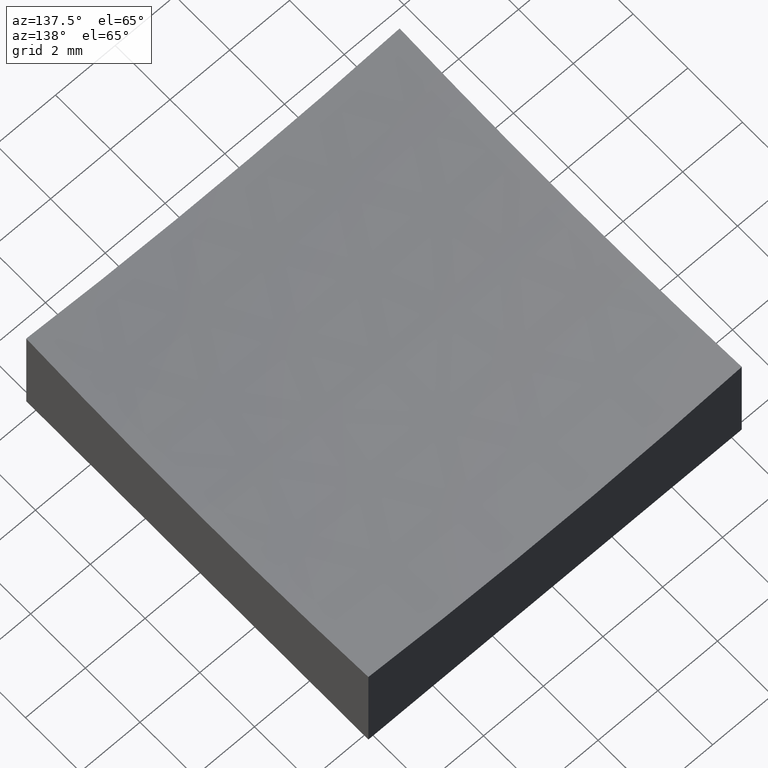
[diagram: clean part render]
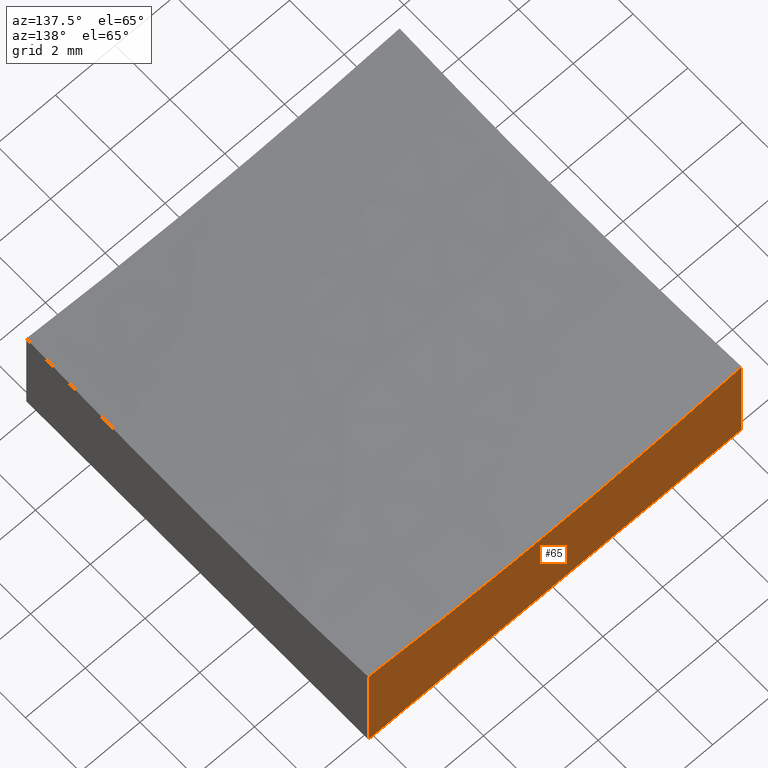
[diagram: same view with one face highlighted and labeled with its STEP entity id]
A machine part, auxiliary view. The second image highlights one B-rep face of the part: STEP entity #65.
In plain terms, the highlighted planar face has unit normal (0, 1, 0).
Its self-contained STEP definition (entity closure, byte-faithful):
#3 = ORIENTED_EDGE ( 'NONE', *, *, #176, .T. ) ;
#10 = VECTOR ( 'NONE', #195, 1000.000000000000000 ) ;
#11 = CARTESIAN_POINT ( 'NONE',  ( 6.250000000000000000, 6.250000000000000888, 0.0000000000000000000 ) ) ;
#13 = CARTESIAN_POINT ( 'NONE',  ( 6.250000000000000000, 6.250000000000000888, 3.654612647653911139 ) ) ;
#18 = LINE ( 'NONE', #95, #10 ) ;
#19 = LINE ( 'NONE', #233, #109 ) ;
#24 = ORIENTED_EDGE ( 'NONE', *, *, #196, .F. ) ;
#27 = DIRECTION ( 'NONE',  ( 0.0000000000000000000, 1.000000000000000000, 0.0000000000000000000 ) ) ;
#35 = DIRECTION ( 'NONE',  ( 0.0000000000000000000, 0.0000000000000000000, 1.000000000000000000 ) ) ;
#54 = CARTESIAN_POINT ( 'NONE',  ( -6.250000000000000000, 6.250000000000000888, 3.654612647653911139 ) ) ;
#56 = VECTOR ( 'NONE', #222, 1000.000000000000000 ) ;
#57 = EDGE_CURVE ( 'NONE', #178, #59, #138, .T. ) ;
#59 = VERTEX_POINT ( 'NONE', #169 ) ;
#60 = ORIENTED_EDGE ( 'NONE', *, *, #146, .F. ) ;
#65 = ADVANCED_FACE ( 'NONE', ( #121 ), #164, .T. ) ;
#77 = AXIS2_PLACEMENT_3D ( 'NONE', #184, #27, #103 ) ;
#82 = ORIENTED_EDGE ( 'NONE', *, *, #57, .F. ) ;
#95 = CARTESIAN_POINT ( 'NONE',  ( -6.250000000000000000, 6.250000000000000888, 0.0000000000000000000 ) ) ;
#96 = DIRECTION ( 'NONE',  ( -0.0000000000000000000, -0.0000000000000000000, -1.000000000000000000 ) ) ;
#103 = DIRECTION ( 'NONE',  ( 0.0000000000000000000, -0.0000000000000000000, 1.000000000000000000 ) ) ;
#108 = VERTEX_POINT ( 'NONE', #11 ) ;
#109 = VECTOR ( 'NONE', #96, 1000.000000000000000 ) ;
#121 = FACE_OUTER_BOUND ( 'NONE', #241, .T. ) ;
#138 = LINE ( 'NONE', #220, #56 ) ;
#141 = AXIS2_PLACEMENT_3D ( 'NONE', #212, #251, #35 ) ;
#146 = EDGE_CURVE ( 'NONE', #239, #178, #216, .T. ) ;
#164 = PLANE ( 'NONE',  #77 ) ;
#169 = CARTESIAN_POINT ( 'NONE',  ( -6.250000000000000000, 6.250000000000000888, 0.0000000000000000000 ) ) ;
#176 = EDGE_CURVE ( 'NONE', #239, #108, #19, .T. ) ;
#178 = VERTEX_POINT ( 'NONE', #54 ) ;
#184 = CARTESIAN_POINT ( 'NONE',  ( -6.250000000000000000, 6.250000000000000888, 10.00000000000000000 ) ) ;
#195 = DIRECTION ( 'NONE',  ( 1.000000000000000000, 0.0000000000000000000, 0.0000000000000000000 ) ) ;
#196 = EDGE_CURVE ( 'NONE', #59, #108, #18, .T. ) ;
#212 = CARTESIAN_POINT ( 'NONE',  ( 7.715274834628325378E-15, 6.250000000000000888, 63.00000000000000000 ) ) ;
#216 = CIRCLE ( 'NONE', #141, 59.67359131140004536 ) ;
#220 = CARTESIAN_POINT ( 'NONE',  ( -6.250000000000000000, 6.250000000000000888, 10.00000000000000000 ) ) ;
#222 = DIRECTION ( 'NONE',  ( -0.0000000000000000000, -0.0000000000000000000, -1.000000000000000000 ) ) ;
#233 = CARTESIAN_POINT ( 'NONE',  ( 6.250000000000000000, 6.250000000000000888, 10.00000000000000000 ) ) ;
#239 = VERTEX_POINT ( 'NONE', #13 ) ;
#241 = EDGE_LOOP ( 'NONE', ( #60, #3, #24, #82 ) ) ;
#251 = DIRECTION ( 'NONE',  ( 0.0000000000000000000, 1.000000000000000000, 0.0000000000000000000 ) ) ;